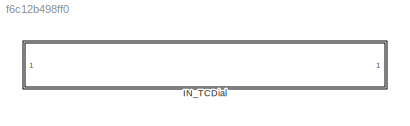
MODEL slx_f6c12b498ff0
KIND library
CONFIG AbsTol = auto
CONFIG EnableMultiTasking = off
CONFIG FixedStep = auto
CONFIG MaxStep = auto
CONFIG MinStep = auto
CONFIG RelTol = 1e-3
CONFIG SampleTimeConstraint = Unconstrained
CONFIG SolverName = VariableStepAuto
CONFIG StartTime = 0.0
CONFIG StopTime = 10.0
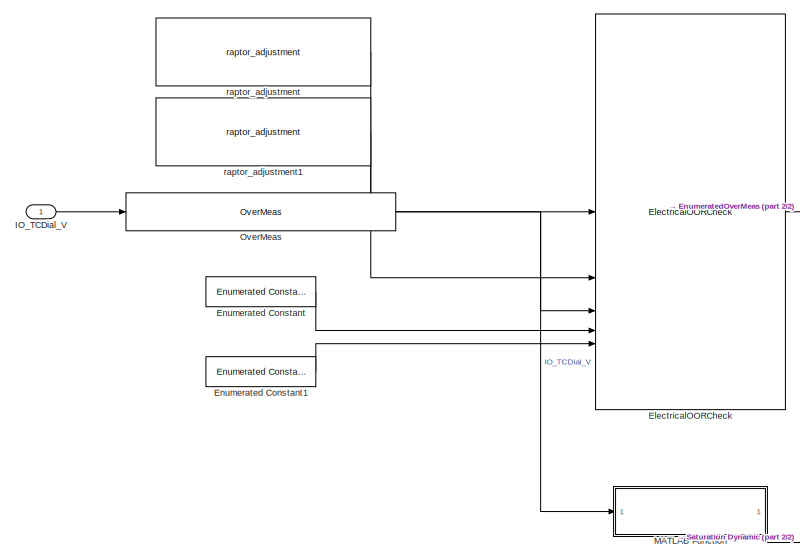
[diagram: IN_TCDial - part 1/2, left side, full height]
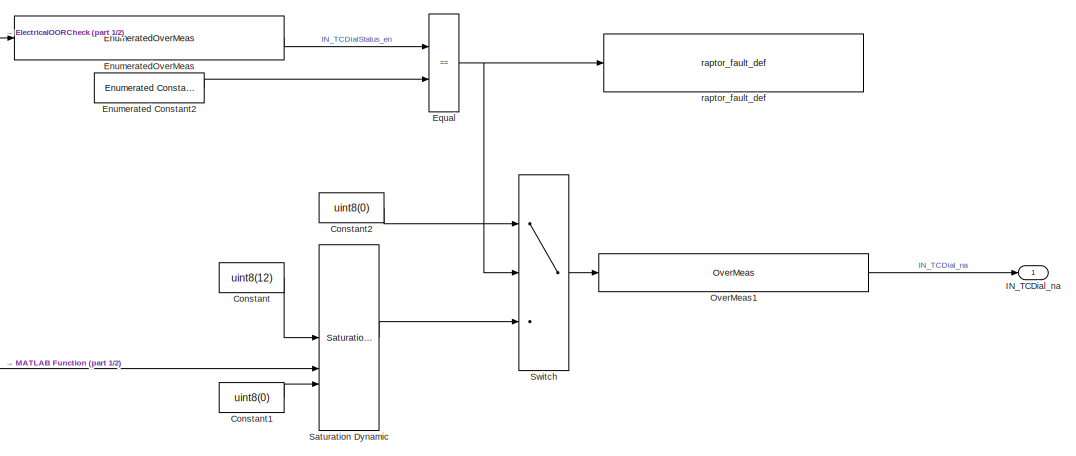
[diagram: IN_TCDial - part 2/2, middle right region]
BLOCK [SubSystem] IN_TCDial
BLOCK [Constant] IN_TCDial/Constant
  Value = uint8(12)
BLOCK [Constant] IN_TCDial/Constant1
  Value = uint8(0)
BLOCK [Constant] IN_TCDial/Constant2
  Value = uint8(0)
BLOCK [Reference] IN_TCDial/ElectricalOORCheck  REF=Utilities/ElectricalOORCheck
  SourceBlock = Utilities/ElectricalOORCheck
BLOCK [Reference] IN_TCDial/Enumerated Constant  REF=simulink/Sources/Enumerated
Constant
  SourceBlock = simulink/Sources/Enumerated\nConstant
  SourceType = Enumerated Constant
BLOCK [Reference] IN_TCDial/Enumerated Constant1  REF=simulink/Sources/Enumerated
Constant
  SourceBlock = simulink/Sources/Enumerated\nConstant
  SourceType = Enumerated Constant
BLOCK [Reference] IN_TCDial/Enumerated Constant2  REF=simulink/Sources/Enumerated
Constant
  SourceBlock = simulink/Sources/Enumerated\nConstant
  SourceType = Enumerated Constant
BLOCK [Reference] IN_TCDial/EnumeratedOverMeas  REF=Utilities/EnumeratedOverMeas
  SourceBlock = Utilities/EnumeratedOverMeas
BLOCK [RelationalOperator] IN_TCDial/Equal
  InputSameDT = off
  Operator = ==
  OutDataTypeStr = boolean
  RndMeth = Simplest
BLOCK [Outport] IN_TCDial/IN_TCDial_na
BLOCK [Inport] IN_TCDial/IO_TCDial_V
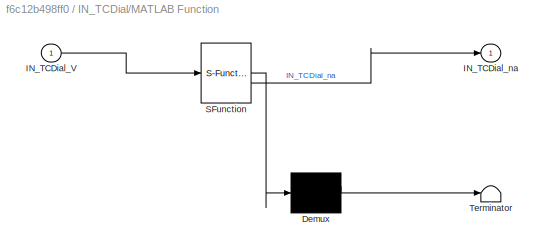
BLOCK [SubSystem] IN_TCDial/MATLAB Function
  ErrorFcn = Stateflow.Translate.translate
  PermitHierarchicalResolution = ExplicitOnly
  SFBlockType = MATLAB Function
  TreatAsAtomicUnit = on
BLOCK [Demux] IN_TCDial/MATLAB Function/ Demux 
  Outputs = 1
BLOCK [S-Function] IN_TCDial/MATLAB Function/ SFunction 
  EnableBusSupport = off
  FunctionName = sf_sfun
  PortCounts = [1 2]
  SFcnIsStateOwnerBlock = off
  SFunctionDeploymentMode = off
  Tag = Stateflow S-Function 2
BLOCK [Terminator] IN_TCDial/MATLAB Function/ Terminator 
BLOCK [Inport] IN_TCDial/MATLAB Function/IN_TCDial_V
BLOCK [Outport] IN_TCDial/MATLAB Function/IN_TCDial_na
BLOCK [Reference] IN_TCDial/OverMeas  REF=Utilities/OverMeas
  SourceBlock = Utilities/OverMeas
BLOCK [Reference] IN_TCDial/OverMeas1  REF=Utilities/OverMeas
  SourceBlock = Utilities/OverMeas
BLOCK [Reference] IN_TCDial/Saturation Dynamic  REF=simulink/Discontinuities/Saturation
Dynamic
  SourceBlock = simulink/Discontinuities/Saturation\nDynamic
  SourceType = Saturation Dynamic
BLOCK [Switch] IN_TCDial/Switch
  Criteria = u2 ~= 0
  InputSameDT = off
  SaturateOnIntegerOverflow = off
BLOCK [Reference] IN_TCDial/raptor_adjustment  REF=Raptor_lib/Data Storage/raptor_adjustment
  SourceBlock = Raptor_lib/Data Storage/raptor_adjustment
  SourceProductName = Raptor
  SourceType = Adjustment
BLOCK [Reference] IN_TCDial/raptor_adjustment1  REF=Raptor_lib/Data Storage/raptor_adjustment
  SourceBlock = Raptor_lib/Data Storage/raptor_adjustment
  SourceProductName = Raptor
  SourceType = Adjustment
BLOCK [Reference] IN_TCDial/raptor_fault_def  REF=Raptor_lib/Faults/raptor_fault_def
  SourceBlock = Raptor_lib/Faults/raptor_fault_def
  SourceProductName = Raptor
  SourceType = Fault Definition
LINE IN_TCDial/Constant1:1 -> IN_TCDial/Saturation Dynamic:3
LINE IN_TCDial/Constant2:1 -> IN_TCDial/Switch:1
LINE IN_TCDial/Constant:1 -> IN_TCDial/Saturation Dynamic:1
LINE IN_TCDial/ElectricalOORCheck:1 -> IN_TCDial/EnumeratedOverMeas:1
LINE IN_TCDial/Enumerated Constant1:1 -> IN_TCDial/ElectricalOORCheck:5
LINE IN_TCDial/Enumerated Constant2:1 -> IN_TCDial/Equal:2
LINE IN_TCDial/Enumerated Constant:1 -> IN_TCDial/ElectricalOORCheck:4
LINE IN_TCDial/EnumeratedOverMeas:1 -> IN_TCDial/Equal:1
NET IN_TCDial/Equal:1 -> IN_TCDial/Switch:2, IN_TCDial/raptor_fault_def:1
LINE IN_TCDial/IO_TCDial_V:1 -> IN_TCDial/OverMeas:1
LINE IN_TCDial/MATLAB Function:1 -> IN_TCDial/Saturation Dynamic:2
LINE IN_TCDial/OverMeas1:1 -> IN_TCDial/IN_TCDial_na:1
NET IN_TCDial/OverMeas:1 -> IN_TCDial/ElectricalOORCheck:3, IN_TCDial/MATLAB Function:1
LINE IN_TCDial/Saturation Dynamic:1 -> IN_TCDial/Switch:3
LINE IN_TCDial/Switch:1 -> IN_TCDial/OverMeas1:1
LINE IN_TCDial/raptor_adjustment1:1 -> IN_TCDial/ElectricalOORCheck:2
LINE IN_TCDial/raptor_adjustment:1 -> IN_TCDial/ElectricalOORCheck:1
note: NET lines group one-source signal fan-out (src -> all destinations, sorted); 1:1 wires keep LINE
CHART IN_TCDial/MATLAB Function states=1 transitions=1
  STATE_LABEL 'eML_blk_kernel()'
  STATE_LABEL 'SCRIPT:\nfunction IN_TCDial_na = fcn(IN_TCDial_V)\n\nif (IN_TCDial_V > 4.77) && (IN_TCDial_V <= 5)\n    IN_TCDial_na = 0; \nelseif (IN_TCDial_V > 4.32) && (IN_TCDial_V <= 4.7)\n    IN_TCDial_na = 1; \nelseif (IN_TCDial_V > 3.86) && (IN_TCDial_V <= 4.32)\n    IN_TCDial_na = 2;\nelseif (IN_TCDial_V > 3.41) && (IN_TCDial_V <= 3.86)\n    IN_TCDial_na = 3; \nelseif (IN_TCDial_V > 2.96) && (IN_TCDial_V <= 3.41)\n  ...<+573ch>'
CHART  states=0 transitions=0
